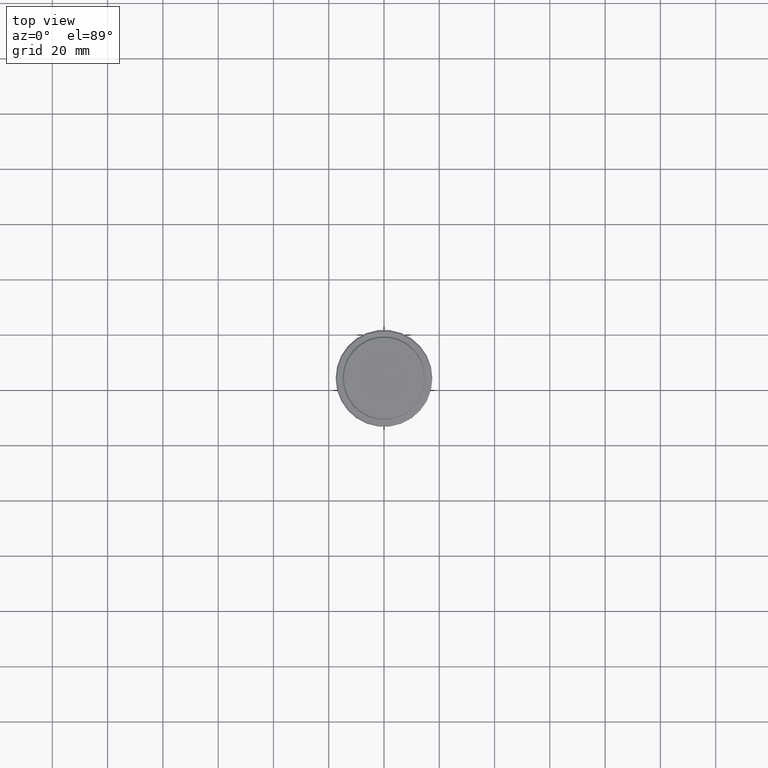
[diagram: clean part render]
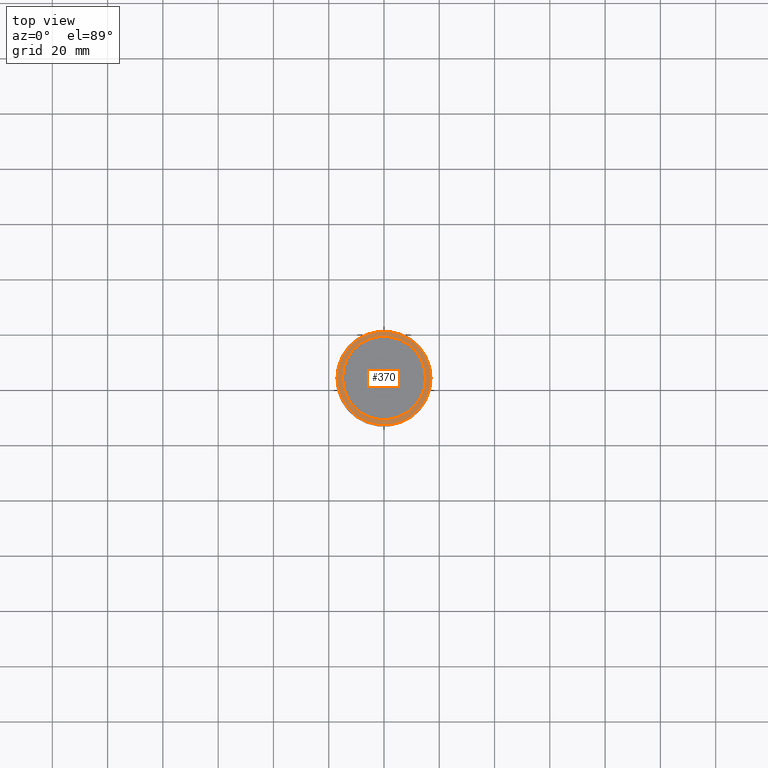
[diagram: same view with one face highlighted and labeled with its STEP entity id]
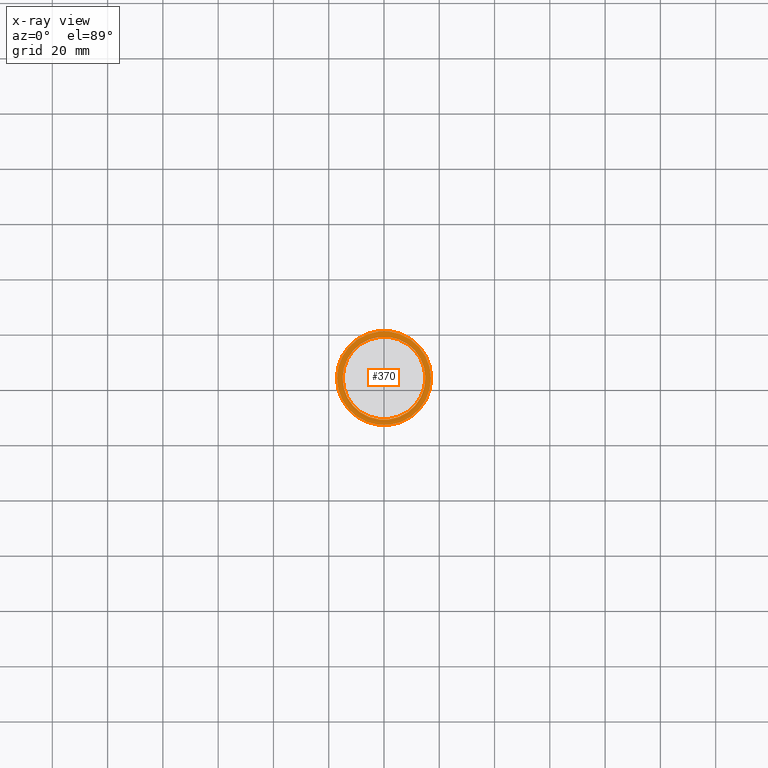
[diagram: x-ray of the same camera — body ghosted, the highlighted face saturated]
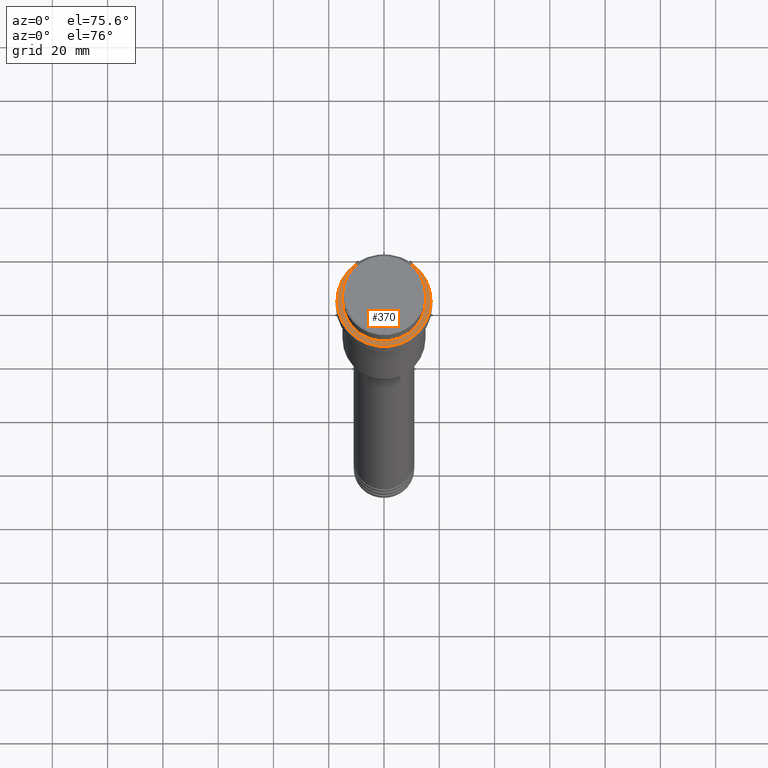
[diagram: same view with one face highlighted and labeled with its STEP entity id]
A machine part, top view. The second image highlights one B-rep face of the part: STEP entity #370.
The next image is the same camera in x-ray: the body ghosted, the highlighted face saturated — about 0% of this face is hidden behind the body in this view.
A second angle (auxiliary view) of the same face is appended — the face is thin or edge-on in the first view.
In plain terms, the highlighted planar face has unit normal (0, -0, 1).
Its self-contained STEP definition (entity closure, byte-faithful):
#44 = CARTESIAN_POINT ( 'NONE',  ( 0.000000000000000000, 0.000000000000000000, -9.000000000000001776 ) ) ;
#52 = DIRECTION ( 'NONE',  ( -0.000000000000000000, -0.000000000000000000, 1.000000000000000000 ) ) ;
#93 = ORIENTED_EDGE ( 'NONE', *, *, #1102, .T. ) ;
#102 = PLANE ( 'NONE',  #1017 ) ;
#111 = VERTEX_POINT ( 'NONE', #879 ) ;
#125 = CARTESIAN_POINT ( 'NONE',  ( 17.00000000000001421, 2.112515728529185250E-15, -9.000000000000001776 ) ) ;
#129 = DIRECTION ( 'NONE',  ( 0.000000000000000000, 0.000000000000000000, -1.000000000000000000 ) ) ;
#217 = CIRCLE ( 'NONE', #919, 17.00000000000001421 ) ;
#222 = FACE_OUTER_BOUND ( 'NONE', #1114, .T. ) ;
#227 = DIRECTION ( 'NONE',  ( 1.000000000000000000, 0.000000000000000000, 0.000000000000000000 ) ) ;
#236 = EDGE_LOOP ( 'NONE', ( #609, #812 ) ) ;
#318 = DIRECTION ( 'NONE',  ( 0.000000000000000000, 0.000000000000000000, -1.000000000000000000 ) ) ;
#336 = CIRCLE ( 'NONE', #909, 17.00000000000001421 ) ;
#339 = EDGE_CURVE ( 'NONE', #832, #937, #336, .T. ) ;
#370 = ADVANCED_FACE ( 'NONE', ( #222, #1080 ), #102, .T. ) ;
#437 = DIRECTION ( 'NONE',  ( 1.000000000000000000, 0.000000000000000000, 0.000000000000000000 ) ) ;
#480 = DIRECTION ( 'NONE',  ( 1.000000000000000000, 0.000000000000000000, 0.000000000000000000 ) ) ;
#500 = CARTESIAN_POINT ( 'NONE',  ( 14.99999999999999467, 0.000000000000000000, -9.000000000000001776 ) ) ;
#532 = DIRECTION ( 'NONE',  ( 0.000000000000000000, -0.000000000000000000, 1.000000000000000000 ) ) ;
#546 = CARTESIAN_POINT ( 'NONE',  ( 0.000000000000000000, 14.49999999999999467, -9.000000000000001776 ) ) ;
#609 = ORIENTED_EDGE ( 'NONE', *, *, #1386, .T. ) ;
#644 = DIRECTION ( 'NONE',  ( -0.000000000000000000, -0.000000000000000000, 1.000000000000000000 ) ) ;
#748 = CARTESIAN_POINT ( 'NONE',  ( 0.000000000000000000, 0.000000000000000000, -9.000000000000001776 ) ) ;
#754 = DIRECTION ( 'NONE',  ( 1.000000000000000000, 0.000000000000000000, 0.000000000000000000 ) ) ;
#777 = CARTESIAN_POINT ( 'NONE',  ( -17.00000000000001421, 0.000000000000000000, -9.000000000000001776 ) ) ;
#812 = ORIENTED_EDGE ( 'NONE', *, *, #1271, .T. ) ;
#832 = VERTEX_POINT ( 'NONE', #125 ) ;
#879 = CARTESIAN_POINT ( 'NONE',  ( -14.99999999999999467, 1.836970198721029194E-15, -9.000000000000001776 ) ) ;
#909 = AXIS2_PLACEMENT_3D ( 'NONE', #44, #52, #480 ) ;
#919 = AXIS2_PLACEMENT_3D ( 'NONE', #748, #644, #754 ) ;
#937 = VERTEX_POINT ( 'NONE', #777 ) ;
#1017 = AXIS2_PLACEMENT_3D ( 'NONE', #546, #532, #437 ) ;
#1080 = FACE_BOUND ( 'NONE', #236, .T. ) ;
#1102 = EDGE_CURVE ( 'NONE', #937, #832, #217, .T. ) ;
#1104 = CARTESIAN_POINT ( 'NONE',  ( 0.000000000000000000, 0.000000000000000000, -9.000000000000001776 ) ) ;
#1114 = EDGE_LOOP ( 'NONE', ( #93, #1385 ) ) ;
#1127 = CIRCLE ( 'NONE', #1217, 14.99999999999999467 ) ;
#1159 = VERTEX_POINT ( 'NONE', #500 ) ;
#1172 = AXIS2_PLACEMENT_3D ( 'NONE', #1296, #318, #227 ) ;
#1214 = DIRECTION ( 'NONE',  ( 1.000000000000000000, 0.000000000000000000, 0.000000000000000000 ) ) ;
#1217 = AXIS2_PLACEMENT_3D ( 'NONE', #1104, #129, #1214 ) ;
#1271 = EDGE_CURVE ( 'NONE', #111, #1159, #1127, .T. ) ;
#1296 = CARTESIAN_POINT ( 'NONE',  ( 0.000000000000000000, 0.000000000000000000, -9.000000000000001776 ) ) ;
#1333 = CIRCLE ( 'NONE', #1172, 14.99999999999999467 ) ;
#1385 = ORIENTED_EDGE ( 'NONE', *, *, #339, .T. ) ;
#1386 = EDGE_CURVE ( 'NONE', #1159, #111, #1333, .T. ) ;